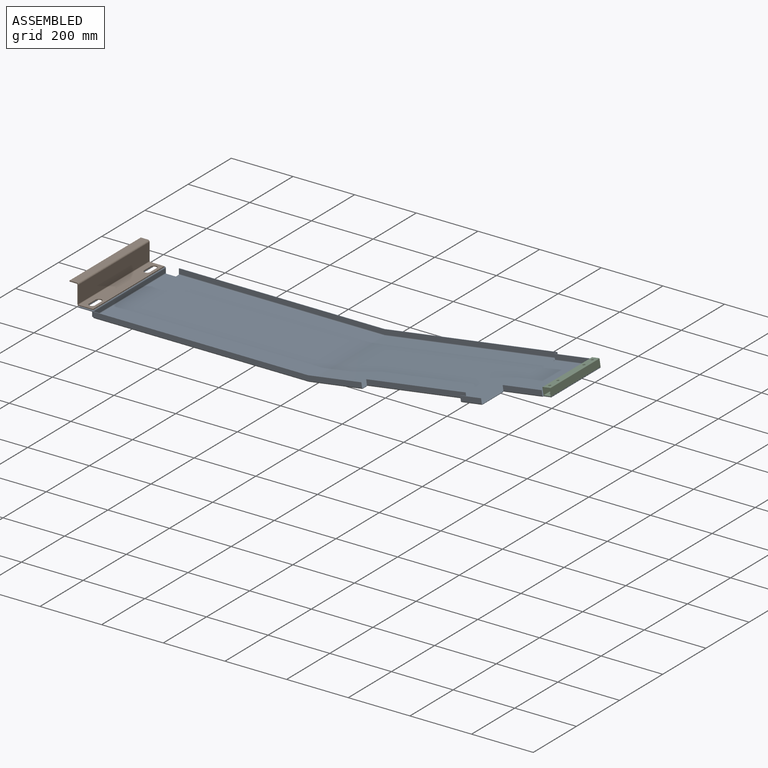
[diagram: assembled view]
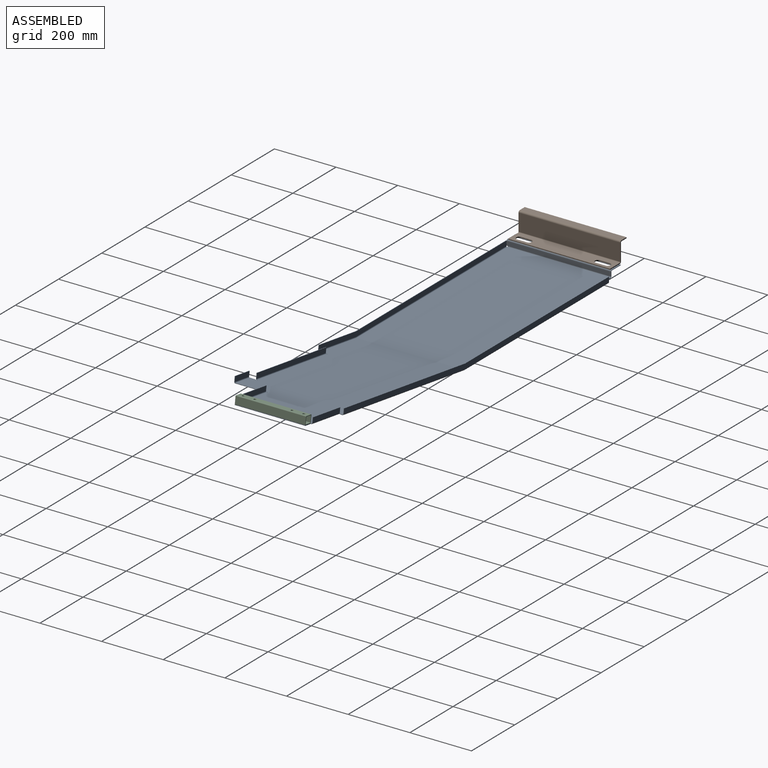
[diagram: assembled view, second angle]
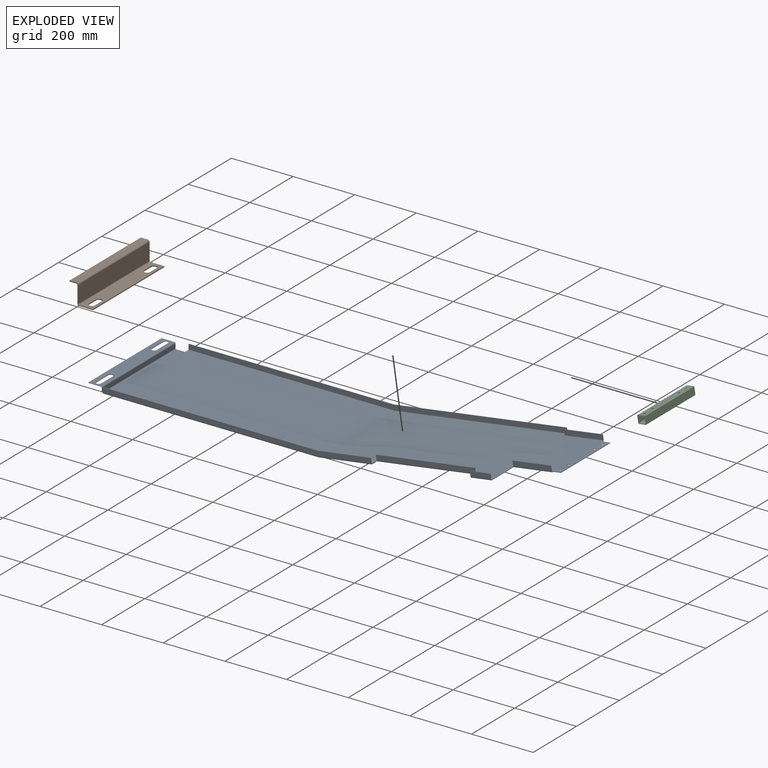
[diagram: exploded view]
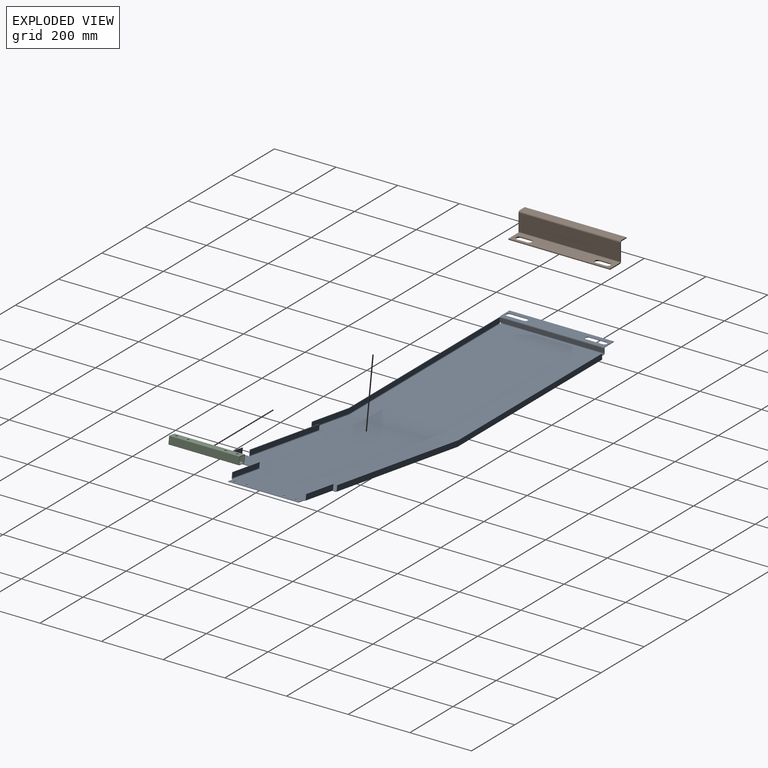
[diagram: exploded view, second angle]
ASSEMBLY  parts=3 mates=2
PART A: 142 faces, bbox 1457.6x355x120.9 mm
  f0: plane 1.59x0.01mm, normal (0,-1,0), area 0mm2, adj f5,f6,f66,f94
  f1: plane 1.57x0.24mm, normal (0,1,0), area 0mm2, adj f36,f37,f67,f75
  f2: plane 1.59x0.01mm, normal (0,1,0), area 0mm2, adj f5,f6,f67,f103
  f3: plane 30x1.59mm, normal (0,1,0), area 47.6mm2, adj f4,f5,f6,f14
  f4: plane 12x1.59mm, normal (-1,0,0), area 19.1mm2, adj f3,f5,f6,f102
  f5: plane 697.55x347.25mm, normal (0,0,-1), area 241865.2mm2, adj f0,f2,f3,f4,f15,f68,f95,f104
  f6: plane 697.55x347.25mm, normal (0,0,1), area 241865.2mm2, adj f0,f2,f3,f4,f16,f69,f96,f105
  f7: plane 2.29x1.59mm, normal (0,0,-1), area 3.6mm2, adj f8,f11,f12,f13
  f8: plane 1.59x1.59mm, normal (0,0,-1), area 2.5mm2, adj f7,f9,f11,f12
  f9: plane 13.84x1.59mm, normal (0,-1,0), area 22mm2, adj f8,f11,f12,f30
  f10: plane 13.84x1.59mm, normal (0,1,0), area 22mm2, adj f11,f12,f14,f31
  f11: plane 339.13x13.84mm, normal (-1,0,0), area 4693.7mm2, adj f7,f8,f9,f10,f15,f33
  f12: plane 339.13x13.84mm, normal (1,0,0), area 4693.7mm2, adj f7,f8,f9,f10,f16,f32
  f13: plane 3.87x3.87mm, normal (0,-1,0), area 7.7mm2, adj f7,f15,f16,f93
  f14: plane 3.87x3.87mm, normal (0,1,0), area 7.7mm2, adj f3,f10,f15,f16
  f15: cylinder r=3.87mm len=335.25mm, axis (0,-1,0), area 2039.8mm2, adj f5,f11,f13,f14
  f16: cylinder r=2.29mm len=335.25mm, axis (0,-1,0), area 1203.8mm2, adj f6,f12,f13,f14
  f17: plane 53.98x1.59mm, normal (1,0,0), area 85.7mm2, adj f18,f27,f28,f29
  f18: cylinder r=7.94mm len=15.88mm, axis (0,0,-1), area 39.6mm2, adj f17,f19,f28,f29
  f19: plane 53.98x1.59mm, normal (-1,0,0), area 85.7mm2, adj f18,f27,f28,f29
  f20: plane 53.98x1.59mm, normal (-1,0,0), area 85.7mm2, adj f21,f26,f28,f29
  f21: cylinder r=7.94mm len=15.88mm, axis (0,0,-1), area 39.6mm2, adj f20,f22,f28,f29
  f22: plane 53.98x1.59mm, normal (1,0,0), area 85.7mm2, adj f21,f26,f28,f29
  f23: plane 41.13x1.59mm, normal (0,-1,0), area 65.3mm2, adj f24,f28,f29,f30
  f24: plane 339.13x1.59mm, normal (-1,0,0), area 538.4mm2, adj f23,f25,f28,f29
  f25: plane 41.13x1.59mm, normal (0,1,0), area 65.3mm2, adj f24,f28,f29,f31
  f26: cylinder r=7.94mm len=15.88mm, axis (0,0,-1), area 39.6mm2, adj f20,f22,f28,f29
  f27: cylinder r=7.94mm len=15.88mm, axis (0,0,-1), area 39.6mm2, adj f17,f19,f28,f29
  f28: plane 339.13x41.13mm, normal (0,0,-1), area 11837.5mm2, adj f17,f18,f19,f20,f21,f22,f23,f24
  f29: plane 339.13x41.13mm, normal (0,0,1), area 11837.5mm2, adj f17,f18,f19,f20,f21,f22,f23,f24
  f30: plane 3.87x3.87mm, normal (0,-1,0), area 7.7mm2, adj f9,f23,f32,f33
  f31: plane 3.87x3.87mm, normal (0,1,0), area 7.7mm2, adj f10,f25,f32,f33
  f32: cylinder r=3.87mm len=339.13mm, axis (0,-1,0), area 2063.4mm2, adj f12,f29,f30,f31
  f33: cylinder r=2.29mm len=339.13mm, axis (0,-1,0), area 1217.7mm2, adj f11,f28,f30,f31
  f34: plane 95.3x1.57mm, normal (0.99,0,0.15), area 151.3mm2, adj f36,f37,f61,f115
  f35: plane 17.51x1.57mm, normal (0.99,0,0.15), area 27.8mm2, adj f36,f37,f53,f84
  f36: plane 712.17x347.25mm, normal (0.15,0,-0.99), area 224429.7mm2, adj f1,f34,f35,f38,f39,f40,f41,f42
  f37: plane 712.17x347.25mm, normal (-0.15,0,0.99), area 224429.7mm2, adj f1,f34,f35,f38,f39,f40,f41,f42
  f38: plane 2.18x1.57mm, normal (0.99,0,0.15), area 3.5mm2, adj f36,f37,f39,f124
  f39: plane 25.36x5.27mm, normal (0,1,0), area 40.3mm2, adj f36,f37,f38,f40
  f40: plane 228.6x1.57mm, normal (0.99,0,0.15), area 362.9mm2, adj f36,f37,f39,f41
  f41: plane 25.36x5.27mm, normal (0,-1,0), area 40.3mm2, adj f36,f37,f40,f42
  f42: plane 2.17x1.57mm, normal (0.99,0,0.15), area 3.4mm2, adj f36,f37,f41,f119
  f43: plane 17.51x1.57mm, normal (-0.99,0,-0.15), area 27.8mm2, adj f36,f37,f57,f116
  f44: plane 1.57x0.24mm, normal (0,-1,0), area 0mm2, adj f36,f37,f66,f85
  f45: cylinder r=4mm len=8.15mm, axis (0.15,0,-0.99), area 39.9mm2, adj f36,f37
  f46: cylinder r=4mm len=8.15mm, axis (0.15,0,-0.99), area 39.9mm2, adj f36,f37
  f47: cylinder r=4mm len=8.15mm, axis (0.15,0,-0.99), area 39.9mm2, adj f36,f37
  f48: cylinder r=4mm len=8.15mm, axis (0.15,0,-0.99), area 39.9mm2, adj f36,f37
  f49: plane 6.4x1.57mm, normal (0.99,0,0.15), area 10.2mm2, adj f36,f37,f65,f76
  f50: plane 8.89x1.57mm, normal (0.99,0,0.15), area 14.1mm2, adj f36,f37,f51,f53
  f51: cylinder r=0.84mm len=1.9mm, axis (-0.15,0,0.99), area 4.2mm2, adj f36,f37,f50,f52
  f52: plane 2.59x1.57mm, normal (-0.99,0,-0.15), area 4.1mm2, adj f36,f37,f51,f112
  f53: plane 1.9x1.82mm, normal (0,1,0), area 2.7mm2, adj f35,f36,f37,f50
  f54: plane 2.59x1.57mm, normal (0.99,0,0.15), area 4.1mm2, adj f36,f37,f55,f111
  f55: cylinder r=0.84mm len=1.9mm, axis (-0.15,0,0.99), area 4.2mm2, adj f36,f37,f54,f56
  f56: plane 8.89x1.57mm, normal (-0.99,0,-0.15), area 14.1mm2, adj f36,f37,f55,f57
  f57: plane 1.9x1.82mm, normal (0,1,0), area 2.7mm2, adj f36,f37,f43,f56
  f58: plane 8.89x1.57mm, normal (0.99,0,0.15), area 14.1mm2, adj f36,f37,f59,f61
  f59: cylinder r=0.84mm len=1.9mm, axis (-0.15,0,0.99), area 4.2mm2, adj f36,f37,f58,f60
  f60: plane 2.59x1.57mm, normal (-0.99,0,-0.15), area 4.1mm2, adj f36,f37,f59,f120
  f61: plane 1.9x1.82mm, normal (0,1,0), area 2.7mm2, adj f34,f36,f37,f58
  f62: plane 2.59x1.57mm, normal (-0.99,0,-0.15), area 4.1mm2, adj f36,f37,f63,f123
  f63: cylinder r=0.84mm len=1.9mm, axis (-0.15,0,0.99), area 4.2mm2, adj f36,f37,f62,f64
  f64: plane 8.89x1.57mm, normal (0.99,0,0.15), area 14.1mm2, adj f36,f37,f63,f65
  f65: plane 1.9x1.82mm, normal (0,-1,0), area 2.7mm2, adj f36,f37,f49,f64
  f66: plane 1.61x0.56mm, normal (0,-1,0), area 0.7mm2, adj f0,f44,f68,f69
  f67: plane 1.61x0.56mm, normal (0,1,0), area 0.7mm2, adj f1,f2,f68,f69
  f68: cylinder r=3.87mm len=347.25mm, axis (0,-1,0), area 196.4mm2, adj f5,f36,f66,f67
  f69: cylinder r=2.29mm len=347.25mm, axis (0,-1,0), area 115.9mm2, adj f6,f37,f66,f67
  f70: plane 15.96x2.35mm, normal (0.99,0,0.15), area 25.6mm2, adj f72,f73,f74,f76
  f71: plane 16.13x1.59mm, normal (-1,0,-0.07), area 25.7mm2, adj f72,f73,f74,f75
  f72: plane 560.21x82.4mm, normal (-0.15,0,0.99), area 898.9mm2, adj f70,f71,f73,f74
  f73: plane 562.56x98.53mm, normal (0,1,0), area 9141mm2, adj f70,f71,f72,f77
  f74: plane 562.56x98.53mm, normal (0,-1,0), area 9141mm2, adj f70,f71,f72,f78
  f75: plane 3.87x3.83mm, normal (-0.99,0,-0.15), area 7.7mm2, adj f1,f71,f77,f78
  f76: plane 3.87x3.83mm, normal (0.99,0,0.15), area 7.7mm2, adj f49,f70,f77,f78
  f77: cylinder r=3.87mm len=561.94mm, axis (-0.99,0,-0.15), area 3452.5mm2, adj f36,f73,f75,f76
  f78: cylinder r=2.29mm len=561.71mm, axis (-0.99,0,-0.15), area 2037.5mm2, adj f37,f74,f75,f76
  f79: plane 16.13x1.59mm, normal (-1,0,-0.07), area 25.7mm2, adj f81,f82,f83,f85
  f80: plane 15.96x2.35mm, normal (0.99,0,0.15), area 25.6mm2, adj f81,f82,f83,f84
  f81: plane 171.96x25.29mm, normal (-0.15,0,0.99), area 275.9mm2, adj f79,f80,f82,f83
  f82: plane 174.3x41.42mm, normal (0,-1,0), area 2812.4mm2, adj f79,f80,f81,f86
  f83: plane 174.3x41.42mm, normal (0,1,0), area 2812.4mm2, adj f79,f80,f81,f87
  f84: plane 3.87x3.83mm, normal (0.99,0,0.15), area 7.7mm2, adj f35,f80,f86,f87
  f85: plane 3.87x3.83mm, normal (-0.99,0,-0.15), area 7.7mm2, adj f44,f79,f86,f87
  f86: cylinder r=3.87mm len=173.69mm, axis (0.99,0,0.15), area 1064.7mm2, adj f36,f82,f84,f85
  f87: cylinder r=2.29mm len=173.46mm, axis (0.99,0,0.15), area 628.4mm2, adj f37,f83,f84,f85
  f88: plane 16.13x1.59mm, normal (-1,0,0), area 25.6mm2, adj f90,f91,f92,f93
  f89: plane 16.13x1.59mm, normal (1,0,0.07), area 25.7mm2, adj f90,f91,f92,f94
  f90: plane 696.35x1.59mm, normal (0,0,1), area 1105.5mm2, adj f88,f89,f91,f92
  f91: plane 697.53x16.13mm, normal (0,-1,0), area 11239.3mm2, adj f88,f89,f90,f95
  f92: plane 697.53x16.13mm, normal (0,1,0), area 11239.3mm2, adj f88,f89,f90,f96
  f93: plane 3.87x3.87mm, normal (-1,0,0), area 7.7mm2, adj f13,f88,f95,f96
  f94: plane 3.87x3.87mm, normal (1,0,0), area 7.7mm2, adj f0,f89,f95,f96
  f95: cylinder r=3.87mm len=697.53mm, axis (-1,0,0), area 4244.1mm2, adj f5,f91,f93,f94
  f96: cylinder r=2.29mm len=697.53mm, axis (-1,0,0), area 2504.7mm2, adj f6,f92,f93,f94
  f97: plane 16.13x1.59mm, normal (1,0,0.07), area 25.7mm2, adj f99,f100,f101,f103
  f98: plane 16.13x1.59mm, normal (-1,0,0), area 25.6mm2, adj f99,f100,f101,f102
  f99: plane 666.35x1.59mm, normal (0,0,1), area 1057.8mm2, adj f97,f98,f100,f101
  f100: plane 667.53x16.13mm, normal (0,1,0), area 10755.5mm2, adj f97,f98,f99,f104
  f101: plane 667.53x16.13mm, normal (0,-1,0), area 10755.5mm2, adj f97,f98,f99,f105
  f102: plane 3.87x3.87mm, normal (-1,0,0), area 7.7mm2, adj f4,f98,f104,f105
  f103: plane 3.87x3.87mm, normal (1,0,0), area 7.7mm2, adj f2,f97,f104,f105
  f104: cylinder r=3.87mm len=667.53mm, axis (-1,0,0), area 4061.6mm2, adj f5,f100,f102,f103
  f105: cylinder r=2.29mm len=667.53mm, axis (-1,0,0), area 2397mm2, adj f6,f101,f102,f103
  f106: plane 15.96x2.35mm, normal (-0.99,0,-0.15), area 25.6mm2, adj f108,f109,f110,f112
  f107: plane 15.96x2.35mm, normal (0.99,0,0.15), area 25.6mm2, adj f108,f109,f110,f111
  f108: plane 321.54x47.29mm, normal (-0.15,0,0.99), area 515.9mm2, adj f106,f107,f109,f110
  f109: plane 323.89x63.25mm, normal (0,-1,0), area 5241.1mm2, adj f106,f107,f108,f113
  f110: plane 323.89x63.25mm, normal (0,1,0), area 5241.1mm2, adj f106,f107,f108,f114
  f111: plane 3.87x3.83mm, normal (0.99,0,0.15), area 7.7mm2, adj f54,f107,f113,f114
  f112: plane 3.87x3.83mm, normal (-0.99,0,-0.15), area 7.7mm2, adj f52,f106,f113,f114
  f113: cylinder r=3.87mm len=322.1mm, axis (0.99,0,0.15), area 1977.5mm2, adj f36,f109,f111,f112
  f114: cylinder r=2.29mm len=321.87mm, axis (0.99,0,0.15), area 1167mm2, adj f37,f110,f111,f112
  f115: plane 3.87x3.83mm, normal (0.99,0,0.15), area 7.7mm2, adj f34,f117,f118,f138
  f116: plane 3.87x3.83mm, normal (-0.99,0,-0.15), area 7.7mm2, adj f43,f117,f118,f137
  f117: cylinder r=3.87mm len=67.28mm, axis (0.99,0,0.15), area 410.3mm2, adj f36,f115,f116,f140
  f118: cylinder r=2.29mm len=67.05mm, axis (0.99,0,0.15), area 242.1mm2, adj f37,f115,f116,f141
  f119: plane 3.87x3.83mm, normal (0.99,0,0.15), area 7.7mm2, adj f42,f121,f122,f128
  f120: plane 3.87x3.83mm, normal (-0.99,0,-0.15), area 7.7mm2, adj f60,f121,f122,f127
  f121: cylinder r=3.87mm len=126.21mm, axis (0.99,0,0.15), area 772.7mm2, adj f36,f119,f120,f130
  f122: cylinder r=2.29mm len=125.98mm, axis (0.99,0,0.15), area 456mm2, adj f37,f119,f120,f131
  f123: plane 3.87x3.83mm, normal (-0.99,0,-0.15), area 7.7mm2, adj f62,f125,f126,f133
  f124: plane 3.87x3.83mm, normal (0.99,0,0.15), area 7.7mm2, adj f38,f125,f126,f132
  f125: cylinder r=3.87mm len=126.21mm, axis (-0.99,0,-0.15), area 772.7mm2, adj f36,f123,f124,f135
  f126: cylinder r=2.29mm len=125.98mm, axis (-0.99,0,-0.15), area 456mm2, adj f37,f123,f124,f136
  f127: plane 15.96x2.35mm, normal (-0.99,0,-0.15), area 25.6mm2, adj f120,f129,f130,f131
  f128: plane 15.96x2.35mm, normal (0.99,0,0.15), area 25.6mm2, adj f119,f129,f130,f131
  f129: plane 125.65x18.48mm, normal (-0.15,0,0.99), area 201.6mm2, adj f127,f128,f130,f131
  f130: plane 128x34.44mm, normal (0,-1,0), area 2048.1mm2, adj f121,f127,f128,f129
  f131: plane 128x34.44mm, normal (0,1,0), area 2048.1mm2, adj f122,f127,f128,f129
  f132: plane 15.96x2.35mm, normal (0.99,0,0.15), area 25.6mm2, adj f124,f134,f135,f136
  f133: plane 15.96x2.35mm, normal (-0.99,0,-0.15), area 25.6mm2, adj f123,f134,f135,f136
  f134: plane 125.65x18.48mm, normal (-0.15,0,0.99), area 201.6mm2, adj f132,f133,f135,f136
  f135: plane 128x34.44mm, normal (0,1,0), area 2048.1mm2, adj f125,f132,f133,f134
  f136: plane 128x34.44mm, normal (0,-1,0), area 2048.1mm2, adj f126,f132,f133,f134
  f137: plane 15.96x2.35mm, normal (-0.99,0,-0.15), area 25.6mm2, adj f116,f139,f140,f141
  f138: plane 15.96x2.35mm, normal (0.99,0,0.15), area 25.6mm2, adj f115,f139,f140,f141
  f139: plane 66.72x9.81mm, normal (-0.15,0,0.99), area 107mm2, adj f137,f138,f140,f141
  f140: plane 69.06x25.77mm, normal (0,-1,0), area 1087.5mm2, adj f117,f137,f138,f139
  f141: plane 69.06x25.77mm, normal (0,1,0), area 1087.5mm2, adj f118,f137,f138,f139
PART B: 30 faces, bbox 76.2x66.7x330.2 mm
  f0: plane 55.75x3.18mm, normal (0,0,-1), area 177mm2, adj f2,f3,f18,f27
  f1: plane 55.75x3.18mm, normal (0,0,1), area 177mm2, adj f2,f3,f17,f26
  f2: plane 330.2x55.75mm, normal (-1,0,0), area 18409.6mm2, adj f0,f1,f19,f29
  f3: plane 330.2x55.75mm, normal (1,0,0), area 18409.6mm2, adj f0,f1,f20,f28
  f4: plane 31.75x3.18mm, normal (-1,0,0), area 100.8mm2, adj f5,f14,f15,f16
  f5: cylinder r=9.53mm len=19.05mm, axis (0,-1,0), area 95mm2, adj f4,f6,f15,f16
  f6: plane 31.75x3.18mm, normal (1,0,0), area 100.8mm2, adj f5,f14,f15,f16
  f7: plane 31.75x3.18mm, normal (-1,0,0), area 100.8mm2, adj f8,f13,f15,f16
  f8: cylinder r=9.53mm len=19.05mm, axis (0,-1,0), area 95mm2, adj f7,f9,f15,f16
  f9: plane 31.75x3.18mm, normal (1,0,0), area 100.8mm2, adj f8,f13,f15,f16
  f10: plane 45.34x3.18mm, normal (0,0,-1), area 144mm2, adj f11,f15,f16,f18
  f11: plane 330.2x3.18mm, normal (1,0,0), area 1048.4mm2, adj f10,f12,f15,f16
  f12: plane 45.34x3.18mm, normal (0,0,1), area 144mm2, adj f11,f15,f16,f17
  f13: cylinder r=9.53mm len=19.05mm, axis (0,-1,0), area 95mm2, adj f7,f9,f15,f16
  f14: cylinder r=9.53mm len=19.05mm, axis (0,-1,0), area 95mm2, adj f4,f6,f15,f16
  f15: plane 330.2x45.34mm, normal (0,-1,0), area 13191.2mm2, adj f4,f5,f6,f7,f8,f9,f10,f11
  f16: plane 330.2x45.34mm, normal (0,1,0), area 13191.2mm2, adj f4,f5,f6,f7,f8,f9,f10,f11
  f17: plane 5.46x5.46mm, normal (0,0,1), area 19.3mm2, adj f1,f12,f19,f20
  f18: plane 5.46x5.46mm, normal (0,0,-1), area 19.3mm2, adj f0,f10,f19,f20
  f19: cylinder r=5.46mm len=330.2mm, axis (0,0,1), area 2832.5mm2, adj f2,f15,f17,f18
  f20: cylinder r=2.29mm len=330.2mm, axis (0,0,1), area 1185.7mm2, adj f3,f16,f17,f18
  f21: plane 23.11x3.18mm, normal (0,0,-1), area 73.4mm2, adj f23,f24,f25,f27
  f22: plane 23.11x3.18mm, normal (0,0,1), area 73.4mm2, adj f23,f24,f25,f26
  f23: plane 330.2x3.18mm, normal (-1,0,0), area 1048.4mm2, adj f21,f22,f24,f25
  f24: plane 330.2x23.11mm, normal (0,-1,0), area 7632.2mm2, adj f21,f22,f23,f29
  f25: plane 330.2x23.11mm, normal (0,1,0), area 7632.2mm2, adj f21,f22,f23,f28
  f26: plane 5.46x5.46mm, normal (0,0,1), area 19.3mm2, adj f1,f22,f28,f29
  f27: plane 5.46x5.46mm, normal (0,0,-1), area 19.3mm2, adj f0,f21,f28,f29
  f28: cylinder r=5.46mm len=330.2mm, axis (0,0,1), area 2832.5mm2, adj f3,f25,f26,f27
  f29: cylinder r=2.29mm len=330.2mm, axis (0,0,1), area 1185.7mm2, adj f2,f24,f26,f27
PART C: 28 faces, bbox 25.4x228.6x25.4 mm
  f0: plane 228.6x22.86mm, normal (0,0,1), area 5225.8mm2, adj f8,f9,f14,f17
  f1: plane 228.6x22.86mm, normal (-1,0,0), area 5024.7mm2, adj f8,f9,f14,f15,f24,f25,f26,f27
  f2: plane 228.6x22.86mm, normal (0,0,-1), area 5225.8mm2, adj f8,f9,f15,f16
  f3: plane 228.6x19.69mm, normal (1,0,0), area 4298.9mm2, adj f8,f9,f10,f13,f24,f25,f26,f27
  f4: plane 228.6x19.69mm, normal (0,0,-1), area 4500mm2, adj f8,f9,f10,f11
  f5: plane 228.6x19.69mm, normal (-1,0,0), area 4263.3mm2, adj f8,f9,f11,f12,f18,f19,f20,f21
  f6: plane 228.6x19.69mm, normal (0,0,1), area 4500mm2, adj f8,f9,f12,f13
  f7: plane 228.6x22.86mm, normal (1,0,0), area 4989.1mm2, adj f8,f9,f16,f17,f18,f19,f20,f21
  f8: plane 25.4x25.4mm, normal (0,-1,0), area 151.2mm2, adj f0,f1,f2,f3,f4,f5,f6,f7
  f9: plane 25.4x25.4mm, normal (0,1,0), area 151.2mm2, adj f0,f1,f2,f3,f4,f5,f6,f7
  f10: cylinder r=1.27mm len=228.6mm, axis (0,1,0), area 456mm2, adj f3,f4,f8,f9
  f11: cylinder r=1.27mm len=228.6mm, axis (0,-1,0), area 456mm2, adj f4,f5,f8,f9
  f12: cylinder r=1.27mm len=228.6mm, axis (0,1,0), area 456mm2, adj f5,f6,f8,f9
  f13: cylinder r=1.27mm len=228.6mm, axis (0,-1,0), area 456mm2, adj f3,f6,f8,f9
  f14: cylinder r=1.27mm len=228.6mm, axis (0,-1,0), area 456mm2, adj f0,f1,f8,f9
  f15: cylinder r=1.27mm len=228.6mm, axis (0,1,0), area 456mm2, adj f1,f2,f8,f9
  f16: cylinder r=1.27mm len=228.6mm, axis (0,-1,0), area 456mm2, adj f2,f7,f8,f9
  f17: cylinder r=1.27mm len=228.6mm, axis (0,1,0), area 456mm2, adj f0,f7,f8,f9
  f18: cylinder r=2.38mm len=4.76mm, axis (1,0,0), area 23.8mm2, adj f5,f7
  f19: cylinder r=2.38mm len=4.76mm, axis (1,0,0), area 23.8mm2, adj f5,f7
  f20: cylinder r=4mm len=8mm, axis (1,0,0), area 39.9mm2, adj f5,f7
  f21: cylinder r=4mm len=8mm, axis (1,0,0), area 39.9mm2, adj f5,f7
  f22: cylinder r=4mm len=8mm, axis (1,0,0), area 39.9mm2, adj f5,f7
  f23: cylinder r=4mm len=8mm, axis (1,0,0), area 39.9mm2, adj f5,f7
  f24: cylinder r=4mm len=8mm, axis (1,0,0), area 39.9mm2, adj f1,f3
  f25: cylinder r=4mm len=8mm, axis (1,0,0), area 39.9mm2, adj f1,f3
  f26: cylinder r=4mm len=8mm, axis (1,0,0), area 39.9mm2, adj f1,f3
  f27: cylinder r=4mm len=8mm, axis (1,0,0), area 39.9mm2, adj f1,f3
PLACE A t=(-233.92,304.34,-136.77)mm
PLACE B rot(axis=(1,0,0),90deg) t=(-286.58,284.09,-116.77)mm
PLACE C rot(axis=(0,1,0),81.6deg) t=(1164,285.59,-21.28)mm
MATE fastened C.f7 <-> A.f37  axis (0.15,0,-0.99) through (1177.15,56.99,-32.18)mm
MATE fastened B.f15 <-> A.f29  axis (0,0,-1) through (-258.94,118.9,-116.77)mm
